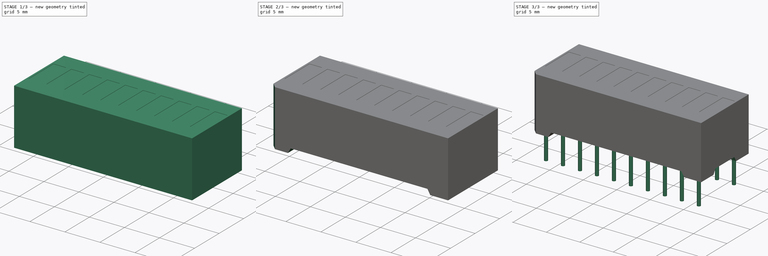
[diagram: build sequence overview — one tinted view per stage of 3, left to right]
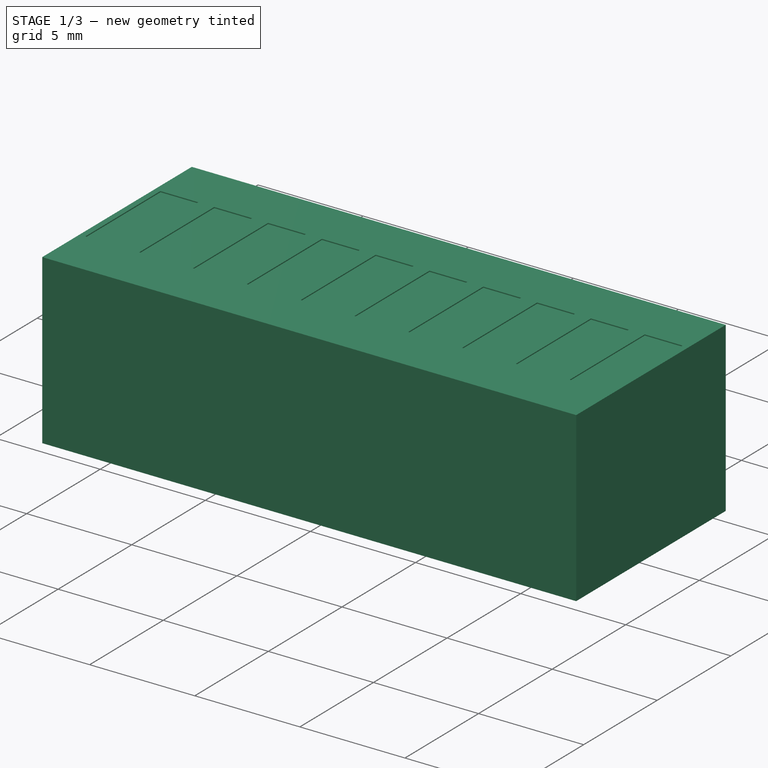
[diagram: stage 1 of 3 — iso view after this stage's code; geometry added in this stage tinted green]
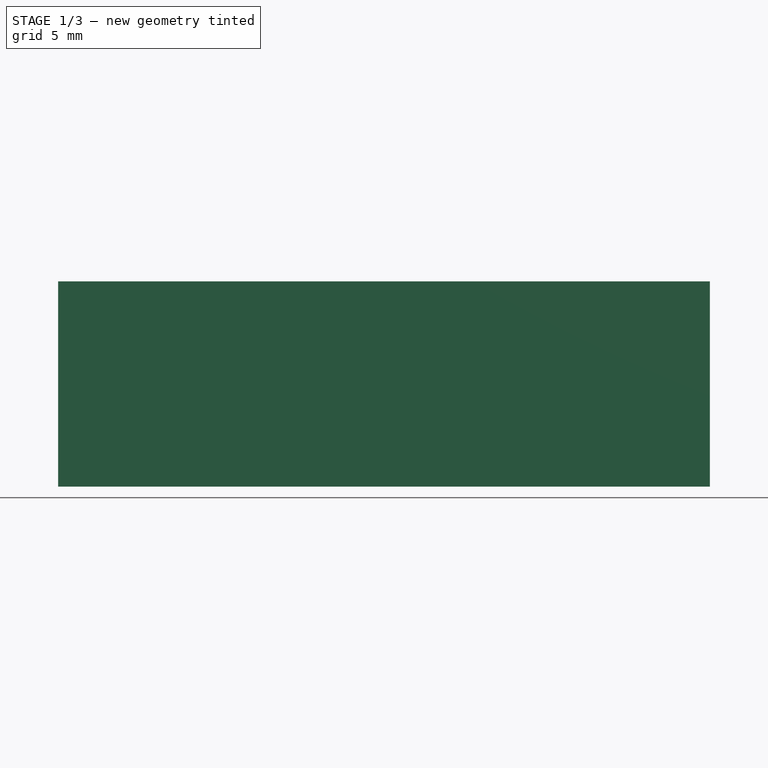
[diagram: stage 1 of 3 — front view after this stage's code; geometry added in this stage tinted green]
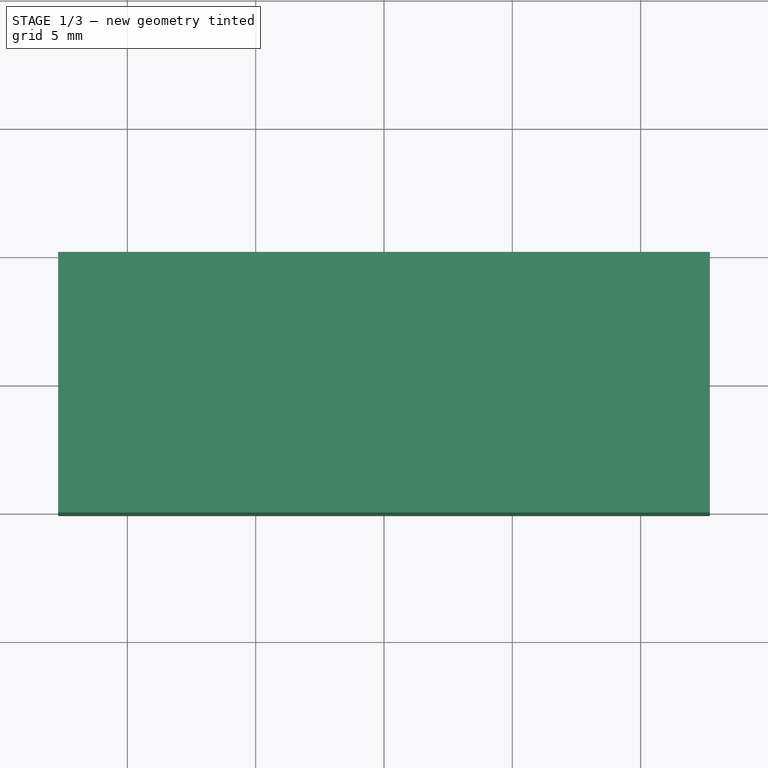
[diagram: stage 1 of 3 — top view after this stage's code; geometry added in this stage tinted green]
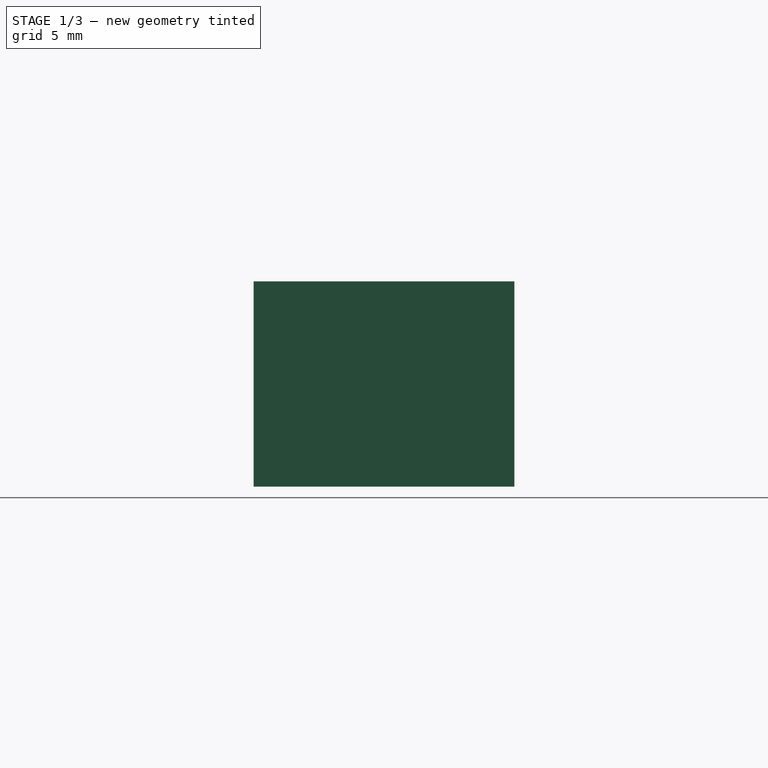
[diagram: stage 1 of 3 — right view after this stage's code; geometry added in this stage tinted green]
FCSTD DOCUMENT  (FreeCAD 0.18.3R)
Label: DC-10EWA
License: All rights reserved
LicenseURL: http://en.wikipedia.org/wiki/All_rights_reserved
objects: Sketcher::SketchObject×5, PartDesign::Pocket×3, PartDesign::Pad×2, PartDesign::Chamfer×1, PartDesign::Body×1
note: 17 computed .brp shape members not serialized (recipe doc carries the construction recipe); baked Part::Feature solids carry a one-line shape summary decoded from their .brp

FEATURE [Sketcher::SketchObject] Sketch
  MapMode = 5
  Support = -> [XY_Plane]
  sketch-geometry (4):
    g0: LineSegment StartX=-12.7 StartY=5.08 StartZ=0 EndX=12.7 EndY=5.08 EndZ=0
    g1: LineSegment StartX=12.7 StartY=5.08 StartZ=0 EndX=12.7 EndY=-5.08 EndZ=0
    g2: LineSegment StartX=12.7 StartY=-5.08 StartZ=0 EndX=-12.7 EndY=-5.08 EndZ=0
    g3: LineSegment StartX=-12.7 StartY=-5.08 StartZ=0 EndX=-12.7 EndY=5.08 EndZ=0
  constraints (10):
    c: Coincident(g0,g1)
    c: Coincident(g1,g2)
    c: Coincident(g2,g3)
    c: Coincident(g3,g0)
    c: Horizontal(g2)
    c: Vertical(g3)
    c: Symmetric(g0,g0,g-2)
    c: Symmetric(g1,g0,g-1)
    c: DistanceY(g1,g1) = 10.16
    c: DistanceX(g0,g0) = 25.4
FEATURE [PartDesign::Pad] Pad
  Length = 8
  Length2 = 100
  Profile = -> Sketch
  Type = 0
FEATURE [Sketcher::SketchObject] Sketch001
  MapMode = 5
  Placement = pos=(0,0,8) rot=(0,0,1;0rad)
  Support = -> [Pad]
  sketch-geometry (40):
    g0: LineSegment StartX=-12.42 StartY=2.55 StartZ=0 EndX=-10.62 EndY=2.55 EndZ=0
    g1: LineSegment StartX=-10.62 StartY=2.55 StartZ=0 EndX=-10.62 EndY=-2.55 EndZ=0
    g2: LineSegment StartX=-10.62 StartY=-2.55 StartZ=0 EndX=-12.42 EndY=-2.55 EndZ=0
    g3: LineSegment StartX=-12.42 StartY=-2.55 StartZ=0 EndX=-12.42 EndY=2.55 EndZ=0
    g4: LineSegment StartX=-7.3 StartY=2.55 StartZ=0 EndX=-5.5 EndY=2.55 EndZ=0
    g5: LineSegment StartX=-5.5 StartY=2.55 StartZ=0 EndX=-5.5 EndY=-2.55 EndZ=0
    g6: LineSegment StartX=-5.5 StartY=-2.55 StartZ=0 EndX=-7.3 EndY=-2.55 EndZ=0
    g7: LineSegment StartX=-7.3 StartY=-2.55 StartZ=0 EndX=-7.3 EndY=2.55 EndZ=0
    g8: LineSegment StartX=-4.74 StartY=2.55 StartZ=0 EndX=-2.94 EndY=2.55 EndZ=0
    g9: LineSegment StartX=-2.94 StartY=2.55 StartZ=0 EndX=-2.94 EndY=-2.55 EndZ=0
    g10: LineSegment StartX=-2.94 StartY=-2.55 StartZ=0 EndX=-4.74 EndY=-2.55 EndZ=0
    g11: LineSegment StartX=-4.74 StartY=-2.55 StartZ=0 EndX=-4.74 EndY=2.55 EndZ=0
    g12: LineSegment StartX=-2.18 StartY=2.55 StartZ=0 EndX=-0.38 EndY=2.55 EndZ=0
    g13: LineSegment StartX=-0.38 StartY=2.55 StartZ=0 EndX=-0.38 EndY=-2.55 EndZ=0
    g14: LineSegment StartX=-0.38 StartY=-2.55 StartZ=0 EndX=-2.18 EndY=-2.55 EndZ=0
    g15: LineSegment StartX=-2.18 StartY=-2.55 StartZ=0 EndX=-2.18 EndY=2.55 EndZ=0
    g16: LineSegment StartX=0.38 StartY=2.55 StartZ=0 EndX=2.18 EndY=2.55 EndZ=0
    g17: LineSegment StartX=2.18 StartY=2.55 StartZ=0 EndX=2.18 EndY=-2.55 EndZ=0
    g18: LineSegment StartX=2.18 StartY=-2.55 StartZ=0 EndX=0.38 EndY=-2.55 EndZ=0
    g19: LineSegment StartX=0.38 StartY=-2.55 StartZ=0 EndX=0.38 EndY=2.55 EndZ=0
    g20: LineSegment StartX=2.94 StartY=2.55 StartZ=0 EndX=4.74 EndY=2.55 EndZ=0
    g21: LineSegment StartX=4.74 StartY=2.55 StartZ=0 EndX=4.74 EndY=-2.55 EndZ=0
    g22: LineSegment StartX=4.74 StartY=-2.55 StartZ=0 EndX=2.94 EndY=-2.55 EndZ=0
    g23: LineSegment StartX=2.94 StartY=-2.55 StartZ=0 EndX=2.94 EndY=2.55 EndZ=0
    g24: LineSegment StartX=5.5 StartY=2.55 StartZ=0 EndX=7.3 EndY=2.55 EndZ=0
    g25: LineSegment StartX=7.3 StartY=2.55 StartZ=0 EndX=7.3 EndY=-2.55 EndZ=0
    g26: LineSegment StartX=7.3 StartY=-2.55 StartZ=0 EndX=5.5 EndY=-2.55 EndZ=0
    g27: LineSegment StartX=5.5 StartY=-2.55 StartZ=0 EndX=5.5 EndY=2.55 EndZ=0
    g28: LineSegment StartX=8.06 StartY=2.55 StartZ=0 EndX=9.86 EndY=2.55 EndZ=0
    g29: LineSegment StartX=9.86 StartY=2.55 StartZ=0 EndX=9.86 EndY=-2.55 EndZ=0
    g30: LineSegment StartX=9.86 StartY=-2.55 StartZ=0 EndX=8.06 EndY=-2.55 EndZ=0
    g31: LineSegment StartX=8.06 StartY=-2.55 StartZ=0 EndX=8.06 EndY=2.55 EndZ=0
    g32: LineSegment StartX=10.62 StartY=2.55 StartZ=0 EndX=12.42 EndY=2.55 EndZ=0
    g33: LineSegment StartX=12.42 StartY=2.55 StartZ=0 EndX=12.42 EndY=-2.55 EndZ=0
    g34: LineSegment StartX=12.42 StartY=-2.55 StartZ=0 EndX=10.62 EndY=-2.55 EndZ=0
    g35: LineSegment StartX=10.62 StartY=-2.55 StartZ=0 EndX=10.62 EndY=2.55 EndZ=0
    g36: LineSegment StartX=-9.86 StartY=2.55 StartZ=0 EndX=-8.06 EndY=2.55 EndZ=0
    g37: LineSegment StartX=-8.06 StartY=2.55 StartZ=0 EndX=-8.06 EndY=-2.55 EndZ=0
    g38: LineSegment StartX=-8.06 StartY=-2.55 StartZ=0 EndX=-9.86 EndY=-2.55 EndZ=0
    g39: LineSegment StartX=-9.86 StartY=-2.55 StartZ=0 EndX=-9.86 EndY=2.55 EndZ=0
  constraints (109):
    c: Coincident(g0,g1)
    c: Coincident(g1,g2)
    c: Coincident(g2,g3)
    c: Coincident(g3,g0)
    c: Horizontal(g0)
    c: Horizontal(g2)
    c: Vertical(g3)
    c: Symmetric(g0,g1,g-1)
    c: DistanceY(g3,g3) = 5.1
    c: DistanceX(g0,g0) = 1.8
    c: Coincident(g4,g5)
    c: Coincident(g5,g6)
    c: Coincident(g6,g7)
    c: Coincident(g7,g4)
    c: Horizontal(g4)
    c: Horizontal(g6)
    c: Vertical(g7)
    c: Coincident(g8,g9)
    c: Coincident(g9,g10)
    c: Coincident(g10,g11)
    c: Coincident(g11,g8)
    c: Horizontal(g8)
    c: Horizontal(g10)
    c: Vertical(g11)
    c: Coincident(g12,g13)
    c: Coincident(g13,g14)
    c: Coincident(g14,g15)
    c: Coincident(g15,g12)
    c: Horizontal(g12)
    c: Horizontal(g14)
    c: Vertical(g15)
    c: Coincident(g16,g17)
    c: Coincident(g17,g18)
    c: Coincident(g18,g19)
    c: Coincident(g19,g16)
    c: Horizontal(g16)
    c: Horizontal(g18)
    c: Vertical(g19)
    c: Coincident(g20,g21)
    c: Coincident(g21,g22)
    c: Coincident(g22,g23)
    c: Coincident(g23,g20)
    c: Horizontal(g20)
    c: Horizontal(g22)
    c: Vertical(g23)
    c: Coincident(g24,g25)
    c: Coincident(g25,g26)
    c: Coincident(g26,g27)
    c: Coincident(g27,g24)
    c: Horizontal(g24)
    c: Horizontal(g26)
    c: Vertical(g27)
    c: Coincident(g28,g29)
    c: Coincident(g29,g30)
    c: Coincident(g30,g31)
    c: Coincident(g31,g28)
    c: Horizontal(g28)
    c: Horizontal(g30)
    c: Vertical(g31)
    c: Coincident(g32,g33)
    c: Coincident(g33,g34)
    c: Coincident(g34,g35)
    c: Coincident(g35,g32)
    c: Horizontal(g32)
    c: Horizontal(g34)
    c: Vertical(g35)
    c: Coincident(g36,g37)
    c: Coincident(g37,g38)
    c: Coincident(g38,g39)
    c: Coincident(g39,g36)
    c: Horizontal(g36)
    c: Vertical(g39)
    c: DistanceX(g36,g36) = 1.8
    c: DistanceX(g4,g4) = 1.8
    c: DistanceX(g8,g8) = 1.8
    c: DistanceX(g12,g12) = 1.8
    c: DistanceX(g16,g16) = 1.8
    c: DistanceX(g20,g20) = 1.8
    c: DistanceX(g24,g24) = 1.8
    c: DistanceX(g28,g28) = 1.8
    c: DistanceX(g32,g32) = 1.8
    c: Symmetric(g36,g37,g-1)
    c: Symmetric(g4,g5,g-1)
    c: Symmetric(g8,g9,g-1)
    c: Symmetric(g12,g13,g-1)
    c: Symmetric(g16,g17,g-1)
    c: Symmetric(g20,g21,g-1)
    c: Symmetric(g24,g25,g-1)
    c: Symmetric(g28,g29,g-1)
    c: Symmetric(g32,g33,g-1)
    c: Equal(g1,g39)
    c: Equal(g7,g37)
    c: Equal(g11,g5)
    c: Equal(g9,g15)
    c: Equal(g13,g19)
    c: Equal(g17,g23)
    c: Equal(g21,g27)
    c: Equal(g25,g31)
    c: Equal(g29,g35)
    c: DistanceX(g1,g38) = 0.76
    c: DistanceX(g29,g34) = 0.76
    c: DistanceX(g25,g30) = 0.76
    c: DistanceX(g21,g26) = 0.76
    c: DistanceX(g17,g22) = 0.76
    c: DistanceX(g13,g18) = 0.76
    c: DistanceX(g9,g14) = 0.76
    c: DistanceX(g5,g10) = 0.76
    c: DistanceX(g37,g6) = 0.76
    c: Symmetric(g0,g32,g-2)
FEATURE [PartDesign::Pocket] Pocket
  BaseFeature = -> Pad
  Length = 0.05
  Length2 = 100
  Profile = -> Sketch001
  Type = 0
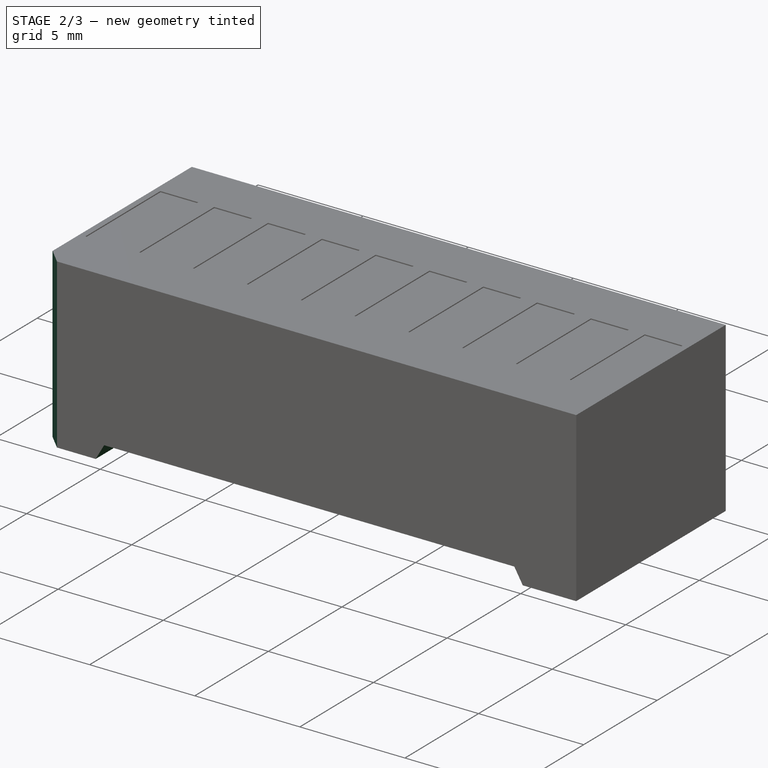
[diagram: stage 2 of 3 — iso view after this stage's code; geometry added in this stage tinted green]
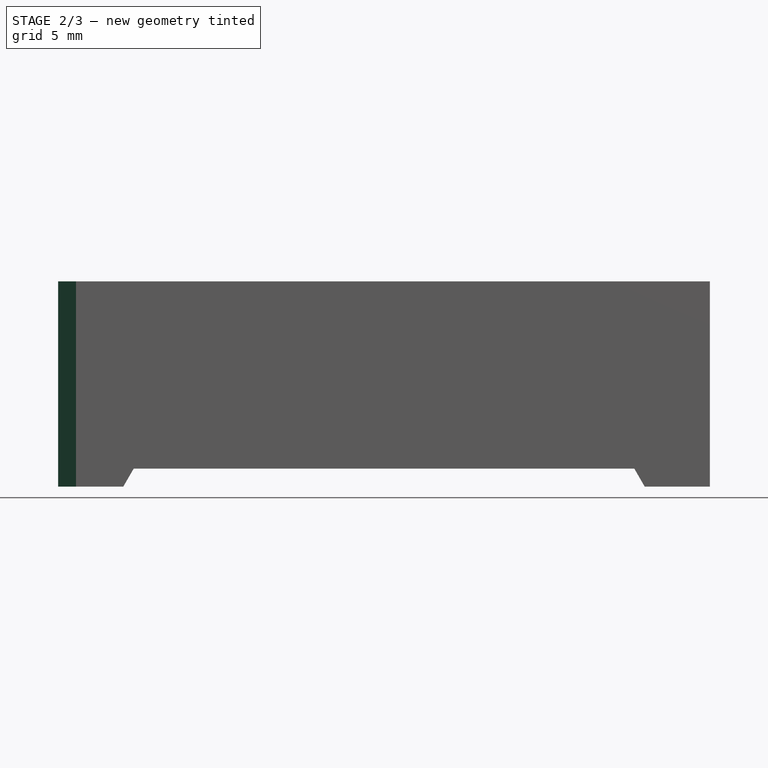
[diagram: stage 2 of 3 — front view after this stage's code; geometry added in this stage tinted green]
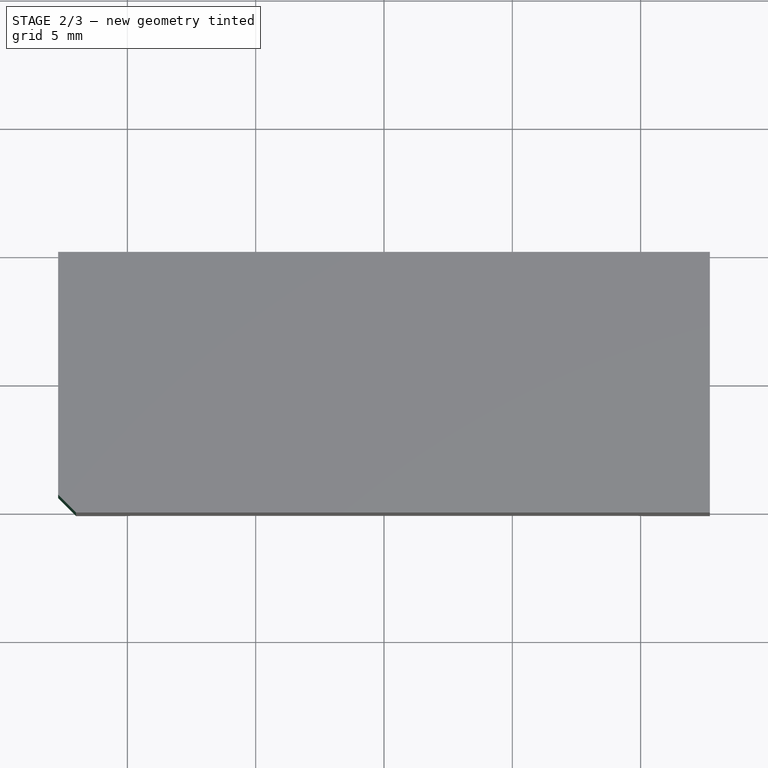
[diagram: stage 2 of 3 — top view after this stage's code; geometry added in this stage tinted green]
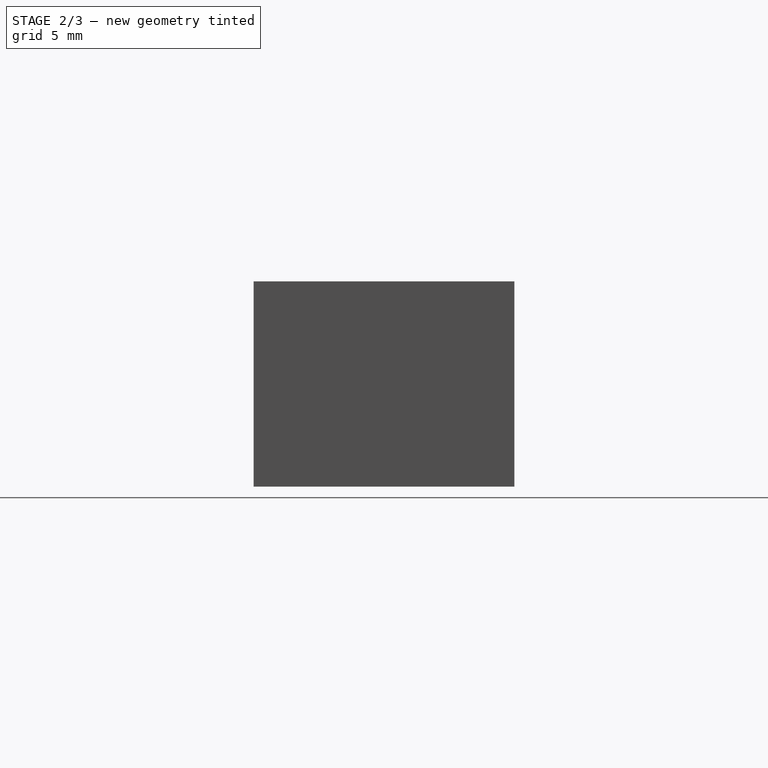
[diagram: stage 2 of 3 — right view after this stage's code; geometry added in this stage tinted green]
FEATURE [PartDesign::Chamfer] Chamfer
  Base = -> Pocket [Edge5]
  BaseFeature = -> Pocket
  Size = 0.7
FEATURE [Sketcher::SketchObject] Sketch002
  MapMode = 5
  Placement = pos=(0,-5.08,0) rot=(1,0,0;1.5708rad)
  Support = -> [Chamfer]
  sketch-geometry (4):
    g0: LineSegment StartX=-10.16 StartY=0 StartZ=0 EndX=-9.75585 EndY=0.7 EndZ=0
    g1: LineSegment StartX=-9.75585 StartY=0.7 StartZ=0 EndX=9.75585 EndY=0.7 EndZ=0
    g2: LineSegment StartX=9.75585 StartY=0.7 StartZ=0 EndX=10.16 EndY=0 EndZ=0
    g3: LineSegment StartX=-10.16 StartY=0 StartZ=0 EndX=10.16 EndY=0 EndZ=0
  constraints (10):
    c: PointOnObject(g0,g-1)
    c: Coincident(g1,g0)
    c: Coincident(g1,g2)
    c: Coincident(g3,g0)
    c: Coincident(g3,g2)
    c: Symmetric(g0,g1,g-2)
    c: Symmetric(g2,g0,g-2)
    c: DistanceY(g2,g1) = 0.7
    c: Angle(g0,g1) = 2.0944
    c: DistanceX(g0,g2) = 20.32
FEATURE [PartDesign::Pocket] Pocket001
  BaseFeature = -> Chamfer
  Length = 5
  Length2 = 100
  Profile = -> Sketch002
  Type = 1
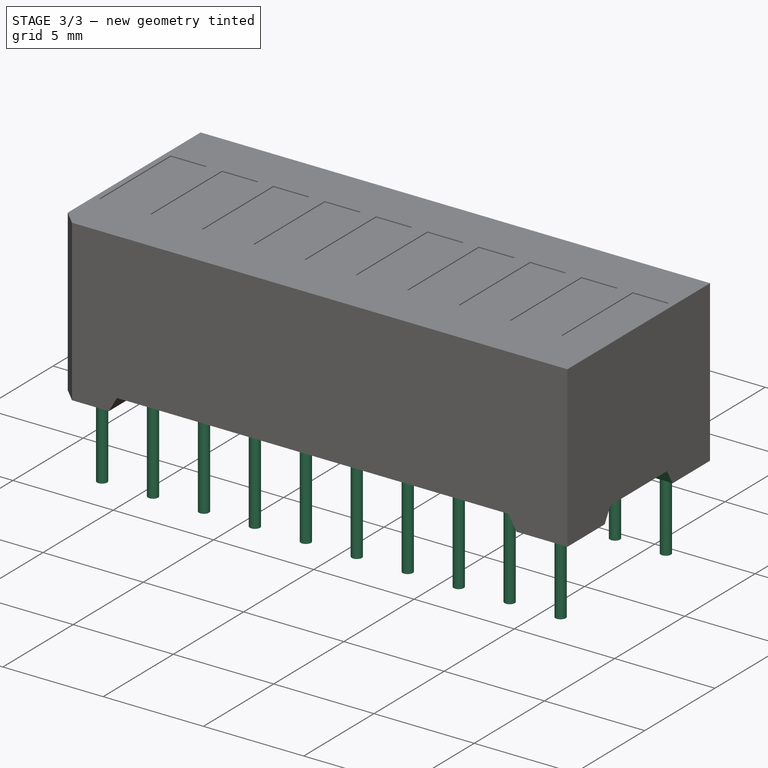
[diagram: stage 3 of 3 — iso view after this stage's code; geometry added in this stage tinted green]
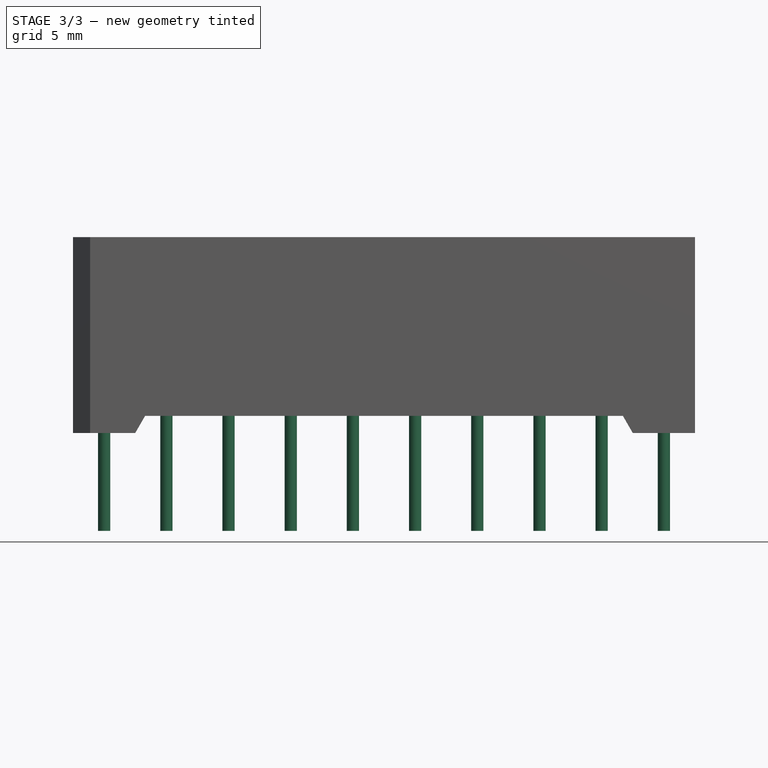
[diagram: stage 3 of 3 — front view after this stage's code; geometry added in this stage tinted green]
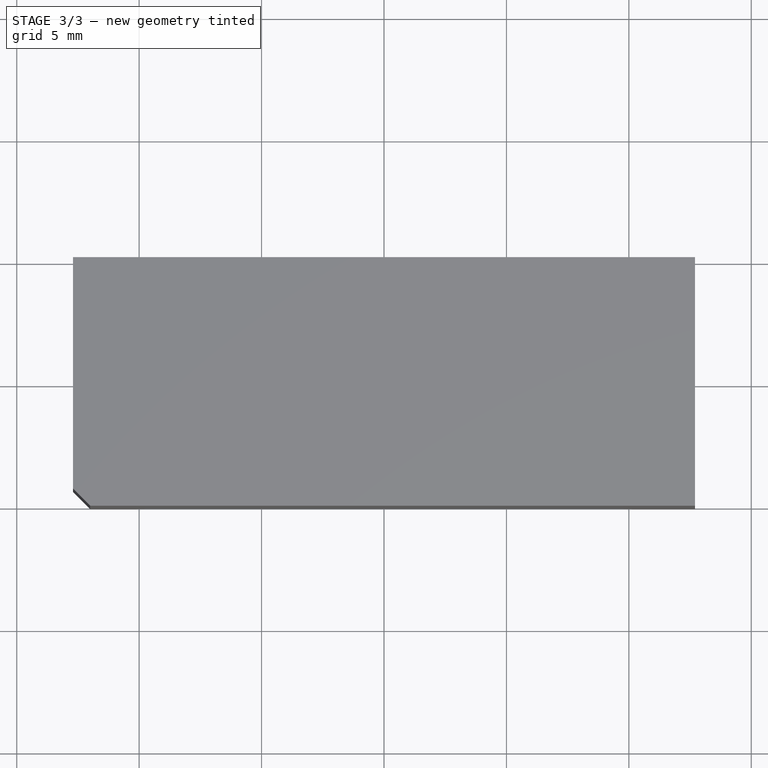
[diagram: stage 3 of 3 — top view after this stage's code; geometry added in this stage tinted green]
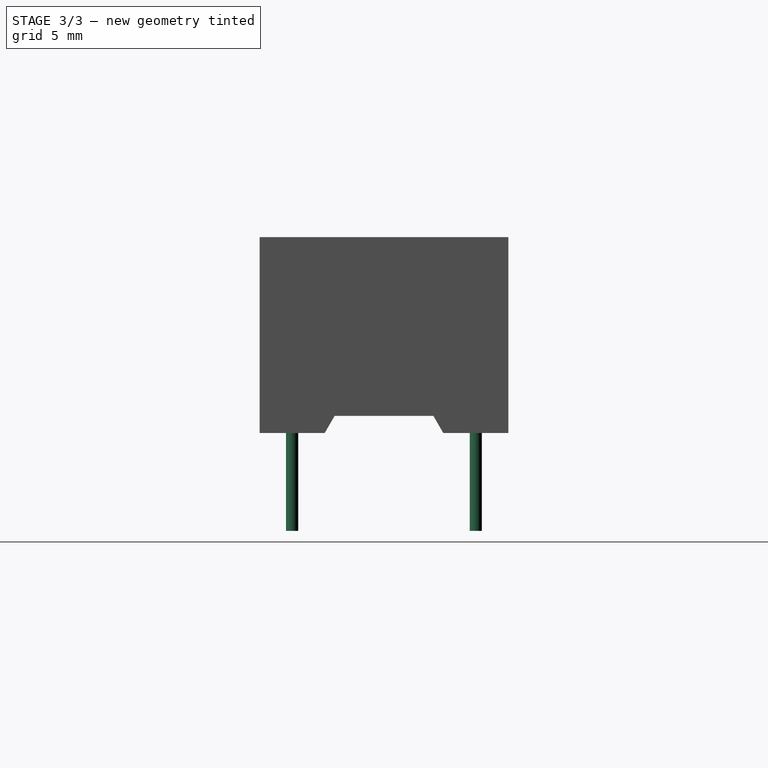
[diagram: stage 3 of 3 — right view after this stage's code; geometry added in this stage tinted green]
FEATURE [Sketcher::SketchObject] Sketch003
  MapMode = 5
  Placement = pos=(12.7,0,0) rot=(0.57735,0.57735,0.57735;2.0944rad)
  Support = -> [Pocket001]
  sketch-geometry (4):
    g0: LineSegment StartX=-2.42 StartY=0 StartZ=0 EndX=-2.01585 EndY=0.7 EndZ=0
    g1: LineSegment StartX=-2.01585 StartY=0.7 StartZ=0 EndX=2.01585 EndY=0.7 EndZ=0
    g2: LineSegment StartX=2.01585 StartY=0.7 StartZ=0 EndX=2.42 EndY=0 EndZ=0
    g3: LineSegment StartX=2.42 StartY=0 StartZ=0 EndX=-2.42 EndY=0 EndZ=0
  constraints (10):
    c: PointOnObject(g0,g-1)
    c: Coincident(g1,g0)
    c: Coincident(g2,g1)
    c: Coincident(g3,g2)
    c: Coincident(g3,g0)
    c: Symmetric(g0,g1,g-2)
    c: Symmetric(g0,g2,g-2)
    c: DistanceY(g2,g1) = 0.7
    c: Angle(g0,g1) = 2.0944
    c: DistanceX(g0,g2) = 4.84
FEATURE [PartDesign::Pocket] Pocket002
  BaseFeature = -> Pocket001
  Length = 5
  Length2 = 100
  Profile = -> Sketch003
  Type = 1
FEATURE [Sketcher::SketchObject] Sketch004
  MapMode = 5
  Placement = pos=(0,2e-16,0.7) rot=(1,0,0;3.14159rad)
  Support = -> [Pocket002]
  sketch-geometry (22):
    g0: Circle CenterX=-11.43 CenterY=3.75 CenterZ=0 NormalX=0 NormalY=0 NormalZ=1 AngleXU=0 Radius=0.25
    g1: Circle CenterX=-8.89 CenterY=3.75 CenterZ=0 NormalX=0 NormalY=0 NormalZ=1 AngleXU=0 Radius=0.25
    g2: Circle CenterX=-6.35 CenterY=3.75 CenterZ=0 NormalX=0 NormalY=0 NormalZ=1 AngleXU=0 Radius=0.25
    g3: Circle CenterX=-3.81 CenterY=3.75 CenterZ=0 NormalX=0 NormalY=0 NormalZ=1 AngleXU=0 Radius=0.25
    g4: Circle CenterX=-1.27 CenterY=3.75 CenterZ=0 NormalX=0 NormalY=0 NormalZ=1 AngleXU=0 Radius=0.25
    g5: Circle CenterX=1.27 CenterY=3.75 CenterZ=0 NormalX=0 NormalY=0 NormalZ=1 AngleXU=0 Radius=0.25
    g6: Circle CenterX=3.81 CenterY=3.75 CenterZ=0 NormalX=0 NormalY=0 NormalZ=1 AngleXU=0 Radius=0.25
    g7: Circle CenterX=6.35 CenterY=3.75 CenterZ=0 NormalX=0 NormalY=0 NormalZ=1 AngleXU=0 Radius=0.25
    g8: Circle CenterX=8.89 CenterY=3.75 CenterZ=0 NormalX=0 NormalY=0 NormalZ=1 AngleXU=0 Radius=0.25
    g9: Circle CenterX=11.43 CenterY=3.75 CenterZ=0 NormalX=0 NormalY=0 NormalZ=1 AngleXU=0 Radius=0.25
    g10: Circle CenterX=-11.43 CenterY=-3.75 CenterZ=0 NormalX=0 NormalY=0 NormalZ=1 AngleXU=0 Radius=0.25
    g11: Circle CenterX=-8.89 CenterY=-3.75 CenterZ=0 NormalX=0 NormalY=0 NormalZ=1 AngleXU=0 Radius=0.25
    g12: Circle CenterX=-6.35 CenterY=-3.75 CenterZ=0 NormalX=0 NormalY=0 NormalZ=1 AngleXU=0 Radius=0.25
    g13: Circle CenterX=-3.81 CenterY=-3.75 CenterZ=0 NormalX=0 NormalY=0 NormalZ=1 AngleXU=0 Radius=0.25
    g14: Circle CenterX=-1.27 CenterY=-3.75 CenterZ=0 NormalX=0 NormalY=0 NormalZ=1 AngleXU=0 Radius=0.25
    g15: Circle CenterX=1.27 CenterY=-3.75 CenterZ=0 NormalX=0 NormalY=0 NormalZ=1 AngleXU=0 Radius=0.25
    g16: Circle CenterX=3.81 CenterY=-3.75 CenterZ=0 NormalX=0 NormalY=0 NormalZ=1 AngleXU=0 Radius=0.25
    g17: Circle CenterX=6.35 CenterY=-3.75 CenterZ=0 NormalX=0 NormalY=0 NormalZ=1 AngleXU=0 Radius=0.25
    g18: Circle CenterX=8.89 CenterY=-3.75 CenterZ=0 NormalX=0 NormalY=0 NormalZ=1 AngleXU=0 Radius=0.25
    g19: Circle CenterX=11.43 CenterY=-3.75 CenterZ=0 NormalX=0 NormalY=0 NormalZ=1 AngleXU=0 Radius=0.25
    g20: LineSegment [constr] StartX=-11.43 StartY=3.75 StartZ=0 EndX=11.43 EndY=3.75 EndZ=0
    g21: LineSegment [constr] StartX=11.43 StartY=-3.75 StartZ=0 EndX=-11.43 EndY=-3.75 EndZ=0
  constraints (62):
    c: Diameter(g0) = 0.5
    c: Diameter(g1) = 0.5
    c: Diameter(g2) = 0.5
    c: Diameter(g3) = 0.5
    c: Diameter(g4) = 0.5
    c: Diameter(g5) = 0.5
    c: Diameter(g6) = 0.5
    c: Diameter(g7) = 0.5
    c: Diameter(g8) = 0.5
    c: Diameter(g9) = 0.5
    c: Diameter(g10) = 0.5
    c: Diameter(g11) = 0.5
    c: Diameter(g12) = 0.5
    c: Diameter(g13) = 0.5
    c: Diameter(g14) = 0.5
    c: Diameter(g15) = 0.5
    c: Diameter(g16) = 0.5
    c: Diameter(g17) = 0.5
    c: Diameter(g18) = 0.5
    c: Diameter(g19) = 0.5
    c: Coincident(g20,g0)
    c: Coincident(g20,g9)
    c: Coincident(g21,g19)
    c: Coincident(g21,g10)
    c: Horizontal(g21)
    c: PointOnObject(g2,g20)
    c: PointOnObject(g3,g20)
    c: PointOnObject(g4,g20)
    c: PointOnObject(g5,g20)
    c: PointOnObject(g6,g20)
    c: PointOnObject(g7,g20)
    c: PointOnObject(g8,g20)
    c: PointOnObject(g18,g21)
    c: PointOnObject(g17,g21)
    c: PointOnObject(g16,g21)
    c: PointOnObject(g15,g21)
    c: PointOnObject(g14,g21)
    c: PointOnObject(g13,g21)
    c: PointOnObject(g12,g21)
    c: PointOnObject(g11,g21)
    c: DistanceX(g10,g11) = 2.54
    c: DistanceY(g10,g0) = 7.5
    c: PointOnObject(g1,g20)
    c: DistanceX(g0,g1) = 2.54
    c: DistanceX(g1,g2) = 2.54
    c: DistanceX(g2,g3) = 2.54
    c: DistanceX(g3,g4) = 2.54
    c: DistanceX(g4,g5) = 2.54
    c: DistanceX(g5,g6) = 2.54
    c: DistanceX(g6,g7) = 2.54
    c: DistanceX(g7,g8) = 2.54
    c: DistanceX(g8,g9) = 2.54
    c: DistanceX(g18,g19) = 2.54
    c: DistanceX(g17,g18) = 2.54
    c: DistanceX(g16,g17) = 2.54
    c: DistanceX(g15,g16) = 2.54
    c: DistanceX(g14,g15) = 2.54
    c: DistanceX(g13,g14) = 2.54
    c: DistanceX(g12,g13) = 2.54
    c: DistanceX(g11,g12) = 2.54
    c: Symmetric(g0,g9,g-2)
    c: Symmetric(g9,g19,g-1)
FEATURE [PartDesign::Pad] Pad001
  BaseFeature = -> Pocket002
  Length = 4.7
  Length2 = 100
  Profile = -> Sketch004
  Type = 0
FEATURE [PartDesign::Body] Body
  Group = -> [Sketch,Pad,Sketch001,Pocket,Chamfer,Sketch002,Pocket001,Sketch003,Pocket002,Sketch004,Pad001]
  Origin = -> Origin
  Tip = -> Pad001
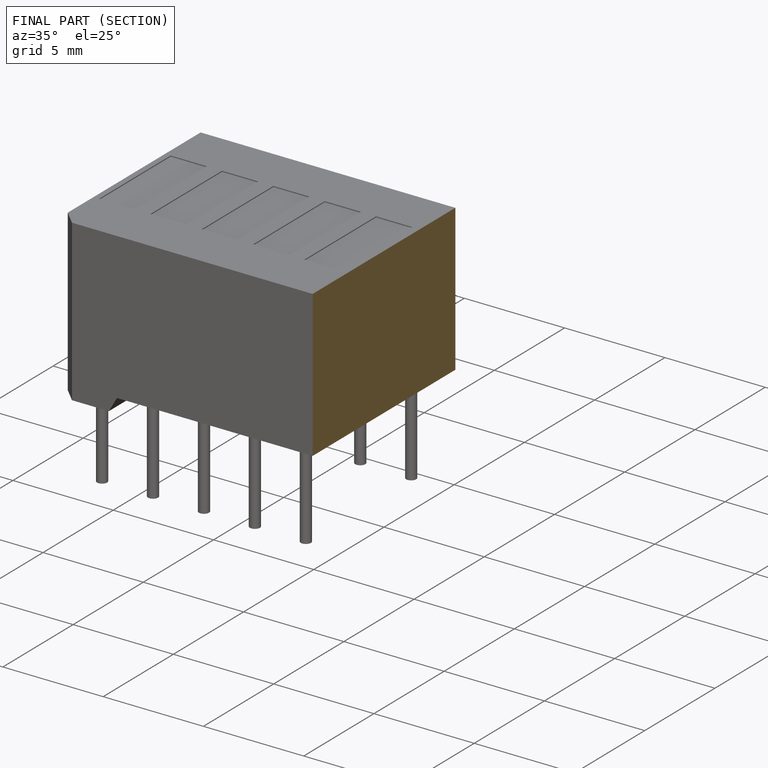
[diagram: finished part — half-section view (interior)]
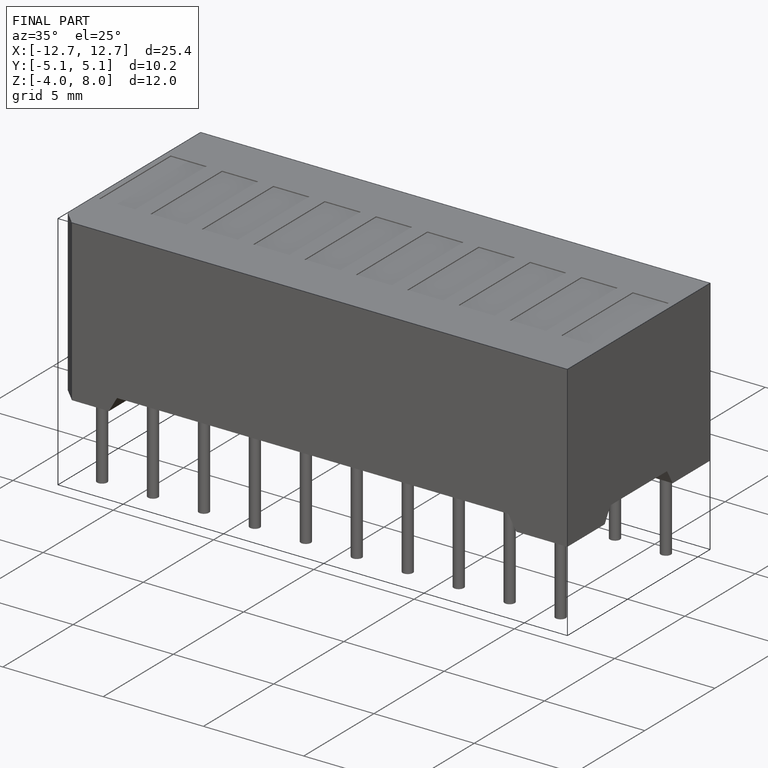
[diagram: finished part — iso view with bounding-box wireframe]
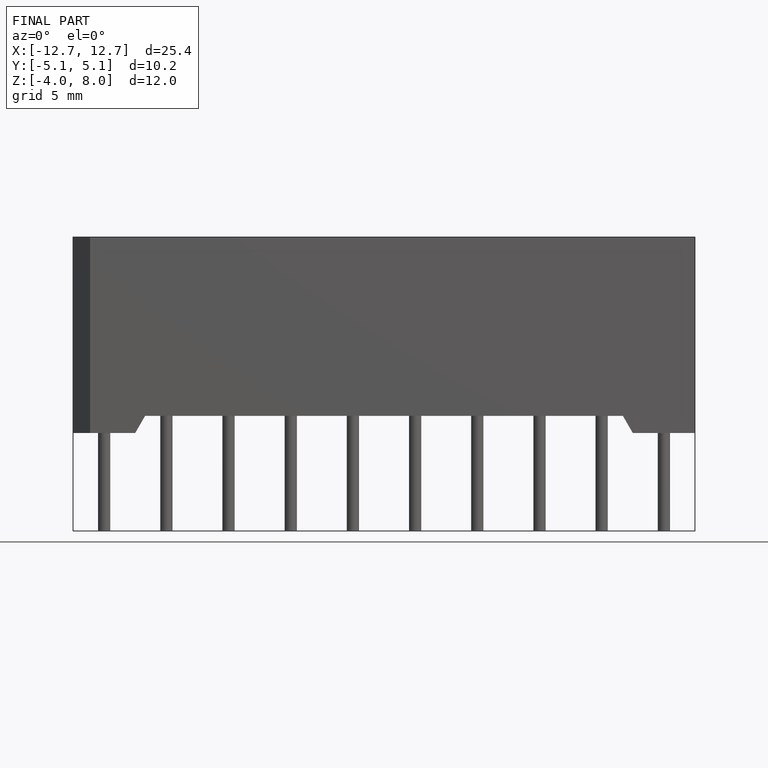
[diagram: finished part — front view with bounding-box wireframe]
